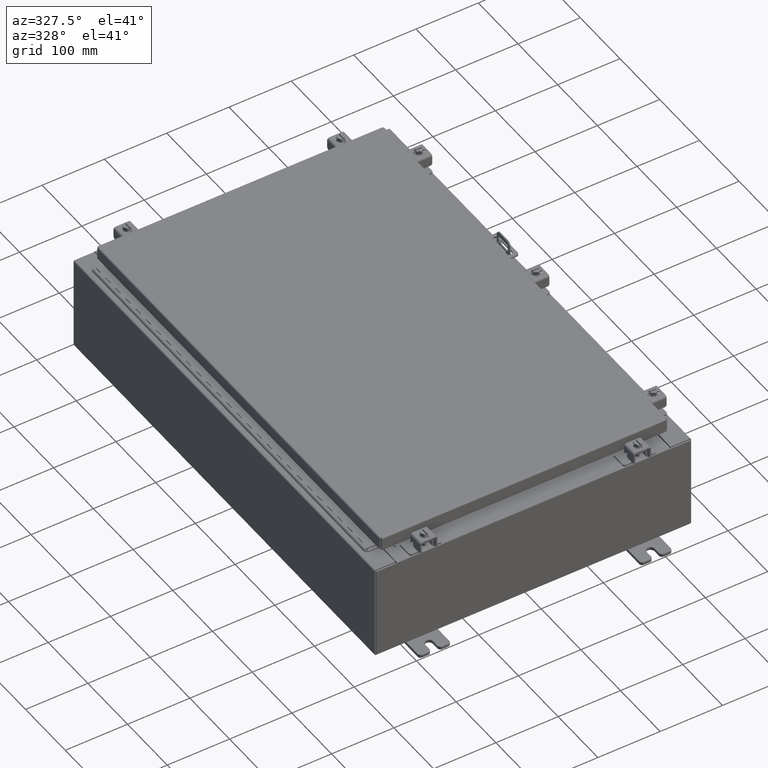
[diagram: clean part render]
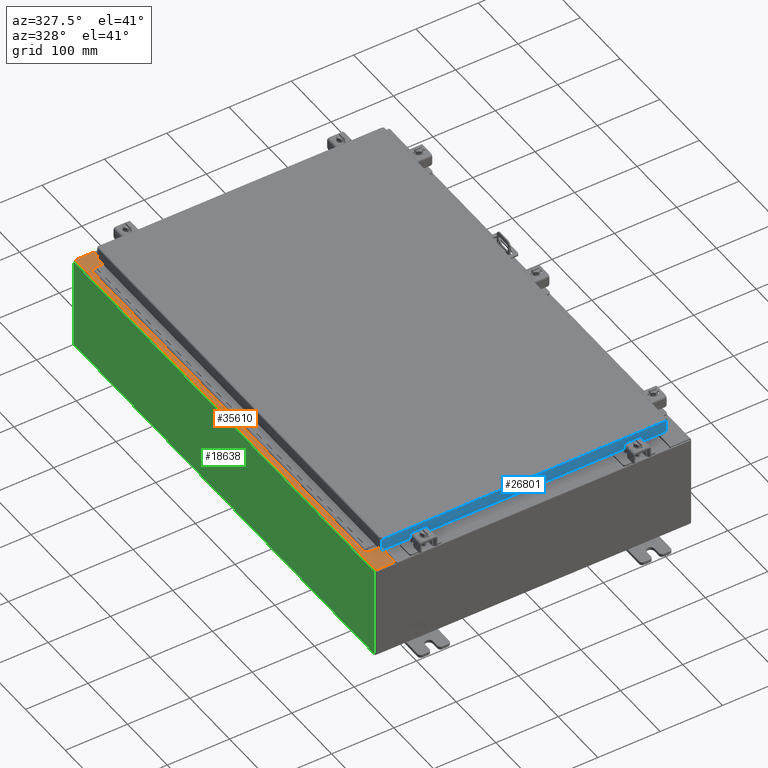
[diagram: same view with three faces highlighted in distinct colors, each labeled with its STEP entity id]
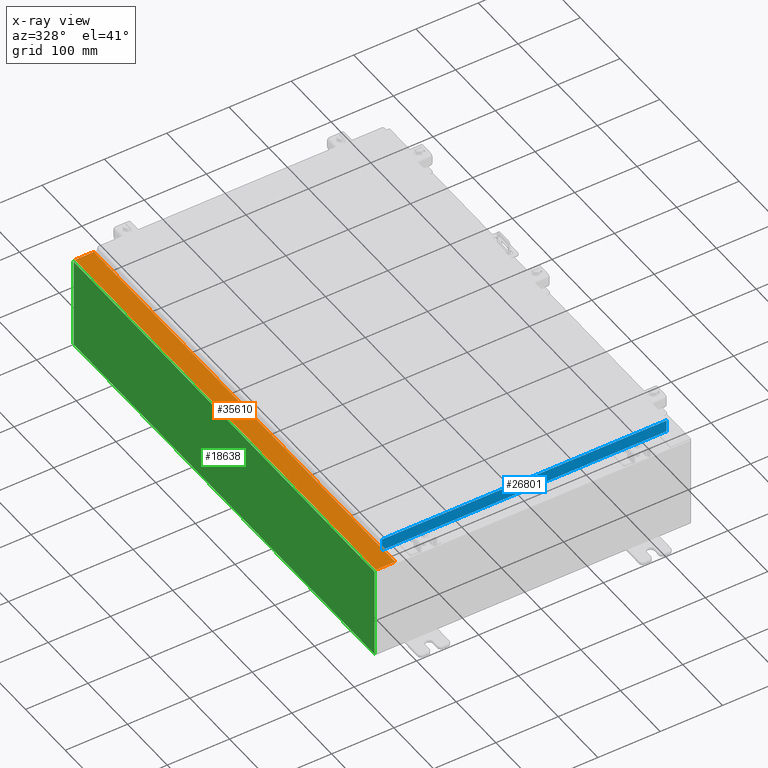
[diagram: x-ray of the same camera — body ghosted, the three highlighted faces saturated]
A machine part, auxiliary view with three faces highlighted in distinct colors.
The next image is the same camera in x-ray (body ghosted, the three faces saturated) — at least one of them is partly hidden behind the body in this view.
Their STEP definitions:

[orange] entity #35610 — the highlighted planar face has unit normal (0, -0, -1).
#87 = VERTEX_POINT ( 'NONE', #30927 ) ;
#184 = VECTOR ( 'NONE', #24956, 39.37007874015748100 ) ;
#869 = DIRECTION ( 'NONE',  ( -7.132762385546378400E-015, 3.660694248911932200E-017, 1.000000000000000000 ) ) ;
#873 = CARTESIAN_POINT ( 'NONE',  ( -9.912300000000017900, 14.92530000000000500, 5.925299999999999100 ) ) ;
#997 = VERTEX_POINT ( 'NONE', #29729 ) ;
#1575 = CARTESIAN_POINT ( 'NONE',  ( -9.912300000000017900, -14.92529999999999600, 5.925299999999999100 ) ) ;
#1948 = ORIENTED_EDGE ( 'NONE', *, *, #37521, .F. ) ;
#2023 = CARTESIAN_POINT ( 'NONE',  ( -8.750050000000021200, -13.59374999999999500, 5.925300000000008000 ) ) ;
#2327 = CARTESIAN_POINT ( 'NONE',  ( -8.699700000000019500, -13.63109999999999600, 5.925300000000008000 ) ) ;
#3387 = CARTESIAN_POINT ( 'NONE',  ( -8.699700000000019500, -14.92529999999999600, 5.925300000000008000 ) ) ;
#4049 = CARTESIAN_POINT ( 'NONE',  ( -4.252457061925311200E-014, 2.169071163167921200E-016, 5.925300000000070200 ) ) ;
#4533 = LINE ( 'NONE', #36831, #20125 ) ;
#4775 = CARTESIAN_POINT ( 'NONE',  ( -8.750050000000021200, -13.63109999999999500, 5.925300000000008000 ) ) ;
#4878 = LINE ( 'NONE', #33613, #35129 ) ;
#4896 = CIRCLE ( 'NONE', #36647, 0.01867499999999949400 ) ;
#5889 = EDGE_LOOP ( 'NONE', ( #28651, #18127, #32411, #23615, #8672, #27802, #1948, #20119, #28652, #8521, #20935, #20384 ) ) ;
#6030 = EDGE_CURVE ( 'NONE', #17523, #10248, #7270, .T. ) ;
#6048 = DIRECTION ( 'NONE',  ( 4.379057701015054300E-047, 1.000000000000000000, -3.660694248911932200E-017 ) ) ;
#6474 = DIRECTION ( 'NONE',  ( -0.0000000000000000000, -1.000000000000000000, -0.0000000000000000000 ) ) ;
#6594 = VECTOR ( 'NONE', #37154, 39.37007874015748100 ) ;
#7036 = DIRECTION ( 'NONE',  ( -1.000000000000000000, 0.0000000000000000000, -7.132762385546378400E-015 ) ) ;
#7270 = LINE ( 'NONE', #17581, #37474 ) ;
#7810 = EDGE_CURVE ( 'NONE', #87, #29800, #33073, .T. ) ;
#8032 = CARTESIAN_POINT ( 'NONE',  ( -8.750050000000021200, -13.63109999999999500, 5.925300000000008000 ) ) ;
#8044 = LINE ( 'NONE', #16124, #184 ) ;
#8521 = ORIENTED_EDGE ( 'NONE', *, *, #7810, .F. ) ;
#8672 = ORIENTED_EDGE ( 'NONE', *, *, #15943, .T. ) ;
#9162 = EDGE_CURVE ( 'NONE', #31907, #87, #4533, .T. ) ;
#9259 = CARTESIAN_POINT ( 'NONE',  ( -8.712700000000021200, -13.59374999999999500, 5.925300000000008000 ) ) ;
#9707 = AXIS2_PLACEMENT_3D ( 'NONE', #34396, #16869, #37338 ) ;
#10248 = VERTEX_POINT ( 'NONE', #873 ) ;
#10813 = EDGE_CURVE ( 'NONE', #997, #10248, #4878, .T. ) ;
#11902 = EDGE_CURVE ( 'NONE', #33057, #32663, #8044, .T. ) ;
#12208 = DIRECTION ( 'NONE',  ( -1.000000000000000000, 0.0000000000000000000, 0.0000000000000000000 ) ) ;
#12562 = LINE ( 'NONE', #13885, #6594 ) ;
#12758 = VERTEX_POINT ( 'NONE', #4775 ) ;
#13885 = CARTESIAN_POINT ( 'NONE',  ( -4.252457061925311200E-014, -14.92529999999999600, 5.925300000000070200 ) ) ;
#15753 = EDGE_CURVE ( 'NONE', #33057, #997, #27677, .T. ) ;
#15943 = EDGE_CURVE ( 'NONE', #17523, #21087, #12562, .T. ) ;
#16124 = CARTESIAN_POINT ( 'NONE',  ( -8.699700000000019500, 13.63110000000000400, 5.925300000000008000 ) ) ;
#16568 = VECTOR ( 'NONE', #12208, 39.37007874015748100 ) ;
#16869 = DIRECTION ( 'NONE',  ( -7.132762385546378400E-015, 3.660694248911932200E-017, 1.000000000000000000 ) ) ;
#17008 = EDGE_CURVE ( 'NONE', #32663, #31907, #33098, .T. ) ;
#17523 = VERTEX_POINT ( 'NONE', #1575 ) ;
#17581 = CARTESIAN_POINT ( 'NONE',  ( -9.912300000000019700, 14.92530000000000500, 5.925299999999999100 ) ) ;
#17716 = CARTESIAN_POINT ( 'NONE',  ( -8.699700000000019500, 2.169071163167921200E-016, 5.925300000000008000 ) ) ;
#18127 = ORIENTED_EDGE ( 'NONE', *, *, #15753, .T. ) ;
#18424 = CARTESIAN_POINT ( 'NONE',  ( -8.750050000000021200, -13.61242499999999500, 5.925300000000008000 ) ) ;
#19010 = DIRECTION ( 'NONE',  ( -1.000000000000000000, -4.379057701015054300E-047, -7.132762385546378400E-015 ) ) ;
#19399 = FACE_OUTER_BOUND ( 'NONE', #5889, .T. ) ;
#20119 = ORIENTED_EDGE ( 'NONE', *, *, #25935, .F. ) ;
#20125 = VECTOR ( 'NONE', #22255, 39.37007874015748100 ) ;
#20217 = VECTOR ( 'NONE', #6048, 39.37007874015748100 ) ;
#20384 = ORIENTED_EDGE ( 'NONE', *, *, #17008, .F. ) ;
#20935 = ORIENTED_EDGE ( 'NONE', *, *, #9162, .F. ) ;
#21087 = VERTEX_POINT ( 'NONE', #3387 ) ;
#21378 = DIRECTION ( 'NONE',  ( 1.000000000000000000, 0.0000000000000000000, 0.0000000000000000000 ) ) ;
#22255 = DIRECTION ( 'NONE',  ( 1.000000000000000000, 0.0000000000000000000, 0.0000000000000000000 ) ) ;
#23204 = AXIS2_PLACEMENT_3D ( 'NONE', #4049, #24572, #7036 ) ;
#23335 = EDGE_CURVE ( 'NONE', #21087, #32128, #34887, .T. ) ;
#23417 = EDGE_CURVE ( 'NONE', #29800, #33168, #33062, .T. ) ;
#23615 = ORIENTED_EDGE ( 'NONE', *, *, #6030, .F. ) ;
#24025 = CARTESIAN_POINT ( 'NONE',  ( -8.712700000000021200, 13.59375000000000400, 5.925300000000008000 ) ) ;
#24572 = DIRECTION ( 'NONE',  ( 7.132762385546378400E-015, -3.660694248911932200E-017, -1.000000000000000000 ) ) ;
#24637 = CARTESIAN_POINT ( 'NONE',  ( -8.699700000000019500, 2.169071163167921200E-016, 5.925300000000008000 ) ) ;
#24956 = DIRECTION ( 'NONE',  ( -1.000000000000000000, -4.340572780399910900E-014, 0.0000000000000000000 ) ) ;
#25564 = DIRECTION ( 'NONE',  ( 1.000000000000000000, 0.0000000000000000000, 0.0000000000000000000 ) ) ;
#25935 = EDGE_CURVE ( 'NONE', #33168, #12758, #4896, .T. ) ;
#26631 = VECTOR ( 'NONE', #25564, 39.37007874015748100 ) ;
#27677 = LINE ( 'NONE', #24637, #36382 ) ;
#27802 = ORIENTED_EDGE ( 'NONE', *, *, #23335, .T. ) ;
#27924 = CARTESIAN_POINT ( 'NONE',  ( -8.750050000000021200, 13.63110000000000200, 5.925300000000007100 ) ) ;
#28651 = ORIENTED_EDGE ( 'NONE', *, *, #11902, .F. ) ;
#28652 = ORIENTED_EDGE ( 'NONE', *, *, #23417, .F. ) ;
#29729 = CARTESIAN_POINT ( 'NONE',  ( -8.699700000000019500, 14.92530000000000500, 5.925300000000007100 ) ) ;
#29800 = VERTEX_POINT ( 'NONE', #35398 ) ;
#30320 = PLANE ( 'NONE',  #23204 ) ;
#30462 = CARTESIAN_POINT ( 'NONE',  ( -8.699700000000019500, 13.63110000000000400, 5.925300000000008000 ) ) ;
#30927 = CARTESIAN_POINT ( 'NONE',  ( -8.712700000000021200, 13.59375000000000200, 5.925300000000008000 ) ) ;
#31907 = VERTEX_POINT ( 'NONE', #36414 ) ;
#32128 = VERTEX_POINT ( 'NONE', #2327 ) ;
#32150 = VECTOR ( 'NONE', #6474, 39.37007874015748100 ) ;
#32411 = ORIENTED_EDGE ( 'NONE', *, *, #10813, .T. ) ;
#32663 = VERTEX_POINT ( 'NONE', #27924 ) ;
#33057 = VERTEX_POINT ( 'NONE', #30462 ) ;
#33062 = LINE ( 'NONE', #9259, #16568 ) ;
#33073 = LINE ( 'NONE', #24025, #32150 ) ;
#33098 = CIRCLE ( 'NONE', #9707, 0.01867499999999949400 ) ;
#33168 = VERTEX_POINT ( 'NONE', #2023 ) ;
#33613 = CARTESIAN_POINT ( 'NONE',  ( -4.252457061925311200E-014, 14.92530000000000500, 5.925300000000069300 ) ) ;
#34396 = CARTESIAN_POINT ( 'NONE',  ( -8.750050000000021200, 13.61242500000000200, 5.925300000000008000 ) ) ;
#34424 = LINE ( 'NONE', #8032, #26631 ) ;
#34887 = LINE ( 'NONE', #17716, #20217 ) ;
#35129 = VECTOR ( 'NONE', #19010, 39.37007874015748100 ) ;
#35139 = DIRECTION ( 'NONE',  ( -7.321388497823866900E-017, 1.000000000000000000, -3.660694248911984600E-017 ) ) ;
#35398 = CARTESIAN_POINT ( 'NONE',  ( -8.712700000000021200, -13.59374999999999500, 5.925300000000008000 ) ) ;
#35610 = ADVANCED_FACE ( 'NONE', ( #19399 ), #30320, .F. ) ;
#36382 = VECTOR ( 'NONE', #36400, 39.37007874015748100 ) ;
#36400 = DIRECTION ( 'NONE',  ( 4.379057701015054300E-047, 1.000000000000000000, -3.660694248911932200E-017 ) ) ;
#36414 = CARTESIAN_POINT ( 'NONE',  ( -8.750050000000021200, 13.59375000000000200, 5.925300000000008000 ) ) ;
#36647 = AXIS2_PLACEMENT_3D ( 'NONE', #18424, #869, #21378 ) ;
#36831 = CARTESIAN_POINT ( 'NONE',  ( -8.750050000000021200, 13.59375000000000200, 5.925300000000008000 ) ) ;
#37154 = DIRECTION ( 'NONE',  ( 1.000000000000000000, 4.379057701015054300E-047, 7.132762385546378400E-015 ) ) ;
#37338 = DIRECTION ( 'NONE',  ( 1.000000000000000000, 0.0000000000000000000, 0.0000000000000000000 ) ) ;
#37474 = VECTOR ( 'NONE', #35139, 39.37007874015748100 ) ;
#37521 = EDGE_CURVE ( 'NONE', #12758, #32128, #34424, .T. ) ;

[blue] entity #26801 — the highlighted planar face has unit normal (0, 1, -0).
#731 = EDGE_CURVE ( 'NONE', #12043, #33433, #21806, .T. ) ;
#1280 = VECTOR ( 'NONE', #34729, 39.37007874015748100 ) ;
#2310 = AXIS2_PLACEMENT_3D ( 'NONE', #8155, #28615, #11071 ) ;
#3690 = VERTEX_POINT ( 'NONE', #11714 ) ;
#5806 = DIRECTION ( 'NONE',  ( 0.0000000000000000000, -2.818880942772360100E-015, -1.000000000000000000 ) ) ;
#7271 = EDGE_CURVE ( 'NONE', #3690, #37446, #19366, .T. ) ;
#7633 = DIRECTION ( 'NONE',  ( 1.000000000000000000, -1.203722403024567300E-016, -9.633926942233120500E-046 ) ) ;
#8155 = CARTESIAN_POINT ( 'NONE',  ( -1.696733714814913500E-015, -14.09399999999999900, 4.043135030623109600E-014 ) ) ;
#8686 = VECTOR ( 'NONE', #5806, 39.37007874015748100 ) ;
#9084 = LINE ( 'NONE', #37630, #1280 ) ;
#9997 = EDGE_CURVE ( 'NONE', #31026, #33433, #9084, .T. ) ;
#11071 = DIRECTION ( 'NONE',  ( 0.0000000000000000000, 2.818880942772360100E-015, 1.000000000000000000 ) ) ;
#11627 = CARTESIAN_POINT ( 'NONE',  ( -8.989157864376265300, -14.09399999999999900, -0.08770000000000026400 ) ) ;
#11714 = CARTESIAN_POINT ( 'NONE',  ( 8.989157864376270600, -14.09400000000000300, -0.8499999999999999800 ) ) ;
#12043 = VERTEX_POINT ( 'NONE', #33398 ) ;
#12101 = DIRECTION ( 'NONE',  ( -1.000000000000000000, 0.0000000000000000000, 0.0000000000000000000 ) ) ;
#12541 = EDGE_LOOP ( 'NONE', ( #12934, #16936, #35665, #37288, #16033, #23123 ) ) ;
#12717 = EDGE_CURVE ( 'NONE', #31026, #37801, #14903, .T. ) ;
#12934 = ORIENTED_EDGE ( 'NONE', *, *, #12717, .F. ) ;
#14000 = VECTOR ( 'NONE', #7633, 39.37007874015748100 ) ;
#14621 = DIRECTION ( 'NONE',  ( -1.000000000000000000, 1.203722403024570700E-016, 1.203722403024571000E-016 ) ) ;
#14903 = LINE ( 'NONE', #31074, #14000 ) ;
#16033 = ORIENTED_EDGE ( 'NONE', *, *, #7271, .F. ) ;
#16073 = DIRECTION ( 'NONE',  ( -1.000000000000000000, 1.203722403024570700E-016, 1.203722403024571000E-016 ) ) ;
#16936 = ORIENTED_EDGE ( 'NONE', *, *, #9997, .T. ) ;
#17022 = VECTOR ( 'NONE', #12101, 39.37007874015748100 ) ;
#17251 = EDGE_CURVE ( 'NONE', #37446, #12043, #32612, .T. ) ;
#17849 = CARTESIAN_POINT ( 'NONE',  ( 8.239157864376270600, -14.09399999999999900, -0.8500000000000010900 ) ) ;
#18432 = VECTOR ( 'NONE', #16073, 39.37007874015748100 ) ;
#19366 = LINE ( 'NONE', #27708, #18432 ) ;
#19731 = EDGE_CURVE ( 'NONE', #37801, #3690, #37937, .T. ) ;
#20811 = CARTESIAN_POINT ( 'NONE',  ( -8.989157864376265300, -14.09400000000000100, -0.8499999999999977600 ) ) ;
#21806 = LINE ( 'NONE', #35097, #36448 ) ;
#22239 = CARTESIAN_POINT ( 'NONE',  ( 8.239157864376270600, -14.09399999999999900, -0.8500000000000010900 ) ) ;
#23123 = ORIENTED_EDGE ( 'NONE', *, *, #19731, .F. ) ;
#23178 = FACE_OUTER_BOUND ( 'NONE', #12541, .T. ) ;
#23358 = CARTESIAN_POINT ( 'NONE',  ( 8.989157864376270600, -14.09400000000000100, -0.07470000000000015500 ) ) ;
#26801 = ADVANCED_FACE ( 'NONE', ( #23178 ), #37313, .F. ) ;
#27181 = CARTESIAN_POINT ( 'NONE',  ( 8.989157864376256400, -14.09400000000000100, -0.08770000000000026400 ) ) ;
#27708 = CARTESIAN_POINT ( 'NONE',  ( 9.078000000000001200, -14.09400000000000300, -0.8499999999999999800 ) ) ;
#28615 = DIRECTION ( 'NONE',  ( 1.203722403024567300E-016, 1.000000000000000000, -2.818880942772360100E-015 ) ) ;
#31026 = VERTEX_POINT ( 'NONE', #11627 ) ;
#31074 = CARTESIAN_POINT ( 'NONE',  ( 9.078000000000001200, -14.09400000000000100, -0.08770000000000026400 ) ) ;
#32612 = LINE ( 'NONE', #17849, #17022 ) ;
#33398 = CARTESIAN_POINT ( 'NONE',  ( -8.239157864376267100, -14.09399999999999900, -0.8500000000000010900 ) ) ;
#33433 = VERTEX_POINT ( 'NONE', #20811 ) ;
#34729 = DIRECTION ( 'NONE',  ( 0.0000000000000000000, -2.818880942772360100E-015, -1.000000000000000000 ) ) ;
#35097 = CARTESIAN_POINT ( 'NONE',  ( 9.078000000000001200, -14.09400000000000300, -0.8499999999999999800 ) ) ;
#35665 = ORIENTED_EDGE ( 'NONE', *, *, #731, .F. ) ;
#36448 = VECTOR ( 'NONE', #14621, 39.37007874015748100 ) ;
#37288 = ORIENTED_EDGE ( 'NONE', *, *, #17251, .F. ) ;
#37313 = PLANE ( 'NONE',  #2310 ) ;
#37446 = VERTEX_POINT ( 'NONE', #22239 ) ;
#37630 = CARTESIAN_POINT ( 'NONE',  ( -8.989157864376265300, -14.09399999999999900, 4.043135030623109600E-014 ) ) ;
#37801 = VERTEX_POINT ( 'NONE', #27181 ) ;
#37937 = LINE ( 'NONE', #23358, #8686 ) ;

[green] entity #18638 — the highlighted planar face has unit normal (1, 0, 0).
#1753 = DIRECTION ( 'NONE',  ( 3.319545939341922800E-015, 0.0000000000000000000, -1.000000000000000000 ) ) ;
#2069 = DIRECTION ( 'NONE',  ( -0.0000000000000000000, 1.000000000000000000, -0.0000000000000000000 ) ) ;
#2309 = EDGE_CURVE ( 'NONE', #11173, #4118, #31751, .T. ) ;
#3063 = PLANE ( 'NONE',  #19068 ) ;
#4118 = VERTEX_POINT ( 'NONE', #19195 ) ;
#6002 = DIRECTION ( 'NONE',  ( 1.000000000000000000, 0.0000000000000000000, 3.319545939341922800E-015 ) ) ;
#6164 = CARTESIAN_POINT ( 'NONE',  ( -10.00000000000000000, -14.92529999999999600, 0.01299999999999986800 ) ) ;
#6909 = ORIENTED_EDGE ( 'NONE', *, *, #24930, .T. ) ;
#7044 = EDGE_CURVE ( 'NONE', #11173, #17472, #25794, .T. ) ;
#8398 = VECTOR ( 'NONE', #2069, 39.37007874015748100 ) ;
#11173 = VERTEX_POINT ( 'NONE', #6164 ) ;
#11190 = ORIENTED_EDGE ( 'NONE', *, *, #15225, .T. ) ;
#12042 = VECTOR ( 'NONE', #20798, 39.37007874015748100 ) ;
#15225 = EDGE_CURVE ( 'NONE', #36130, #4118, #20842, .T. ) ;
#17472 = VERTEX_POINT ( 'NONE', #24759 ) ;
#18638 = ADVANCED_FACE ( 'NONE', ( #23352 ), #3063, .F. ) ;
#19068 = AXIS2_PLACEMENT_3D ( 'NONE', #23568, #6002, #26502 ) ;
#19195 = CARTESIAN_POINT ( 'NONE',  ( -10.00000000000000000, 14.92530000000000500, 0.01299999999999985900 ) ) ;
#20798 = DIRECTION ( 'NONE',  ( -3.319545939341922800E-015, 0.0000000000000000000, 1.000000000000000000 ) ) ;
#20842 = LINE ( 'NONE', #36693, #35509 ) ;
#22420 = VECTOR ( 'NONE', #37187, 39.37007874015748100 ) ;
#22619 = CARTESIAN_POINT ( 'NONE',  ( -10.00000000000001800, -14.92529999999999600, 5.837599999999999200 ) ) ;
#23325 = LINE ( 'NONE', #22619, #22420 ) ;
#23352 = FACE_OUTER_BOUND ( 'NONE', #24560, .T. ) ;
#23568 = CARTESIAN_POINT ( 'NONE',  ( -10.00000000000000000, 0.0000000000000000000, -3.344806387242682200E-014 ) ) ;
#24560 = EDGE_LOOP ( 'NONE', ( #6909, #11190, #28167, #30835 ) ) ;
#24759 = CARTESIAN_POINT ( 'NONE',  ( -10.00000000000001800, -14.92529999999999600, 5.837599999999999200 ) ) ;
#24930 = EDGE_CURVE ( 'NONE', #17472, #36130, #23325, .T. ) ;
#25794 = LINE ( 'NONE', #29648, #12042 ) ;
#26502 = DIRECTION ( 'NONE',  ( 3.319545939341922800E-015, 0.0000000000000000000, -1.000000000000000000 ) ) ;
#28167 = ORIENTED_EDGE ( 'NONE', *, *, #2309, .F. ) ;
#29648 = CARTESIAN_POINT ( 'NONE',  ( -10.00000000000000000, -14.92529999999999600, -3.344806387242682200E-014 ) ) ;
#30030 = CARTESIAN_POINT ( 'NONE',  ( -10.00000000000002000, 14.92530000000000500, 5.837599999999999200 ) ) ;
#30835 = ORIENTED_EDGE ( 'NONE', *, *, #7044, .T. ) ;
#31751 = LINE ( 'NONE', #37141, #8398 ) ;
#35509 = VECTOR ( 'NONE', #1753, 39.37007874015748100 ) ;
#36130 = VERTEX_POINT ( 'NONE', #30030 ) ;
#36693 = CARTESIAN_POINT ( 'NONE',  ( -10.00000000000000000, 14.92530000000000500, -3.344806387242682200E-014 ) ) ;
#37141 = CARTESIAN_POINT ( 'NONE',  ( -10.00000000000000000, 14.92530000000000500, 0.01299999999999986800 ) ) ;
#37187 = DIRECTION ( 'NONE',  ( 0.0000000000000000000, 1.000000000000000000, 0.0000000000000000000 ) ) ;